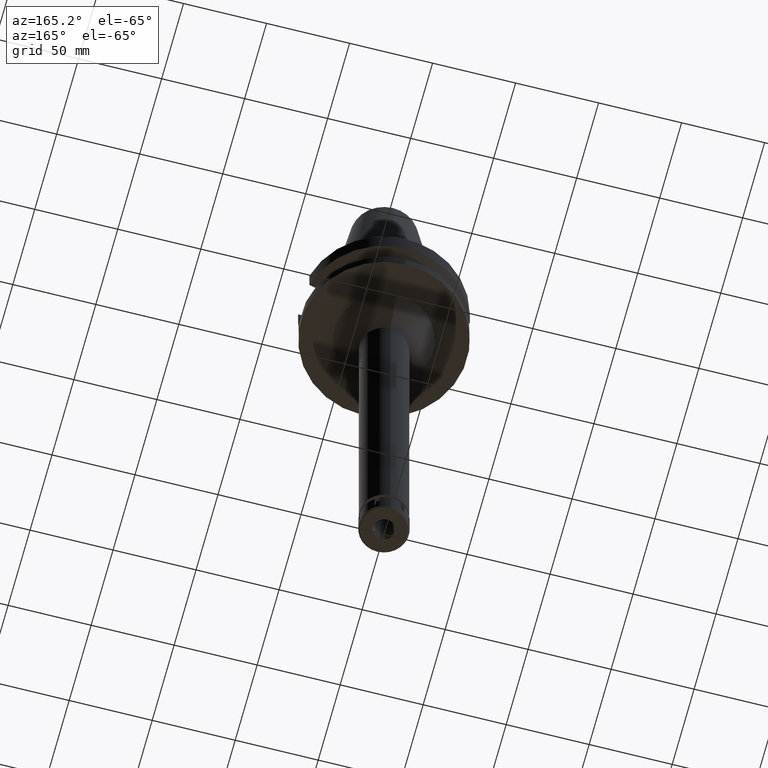
[diagram: clean part render]
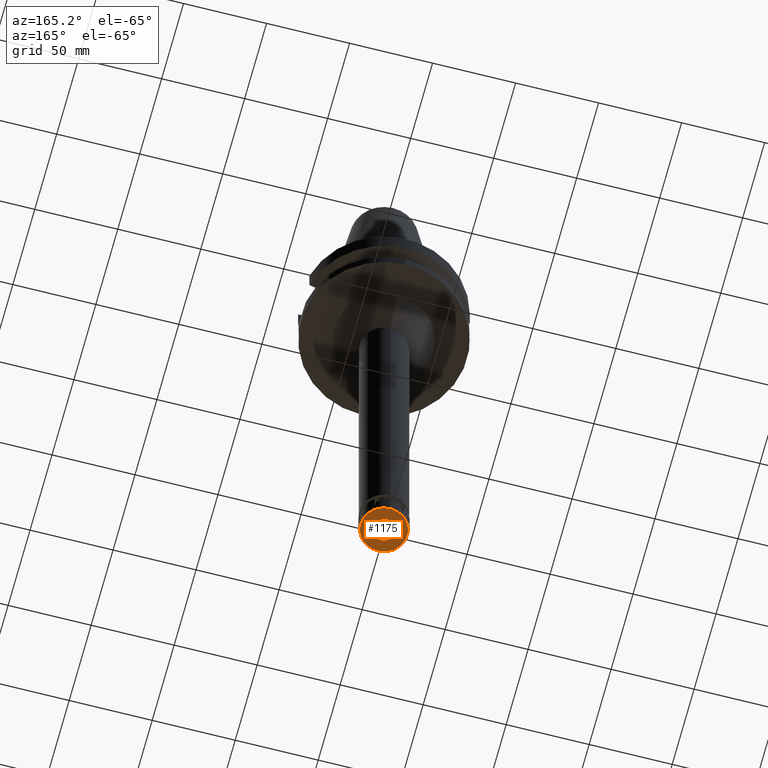
[diagram: same view with one face highlighted and labeled with its STEP entity id]
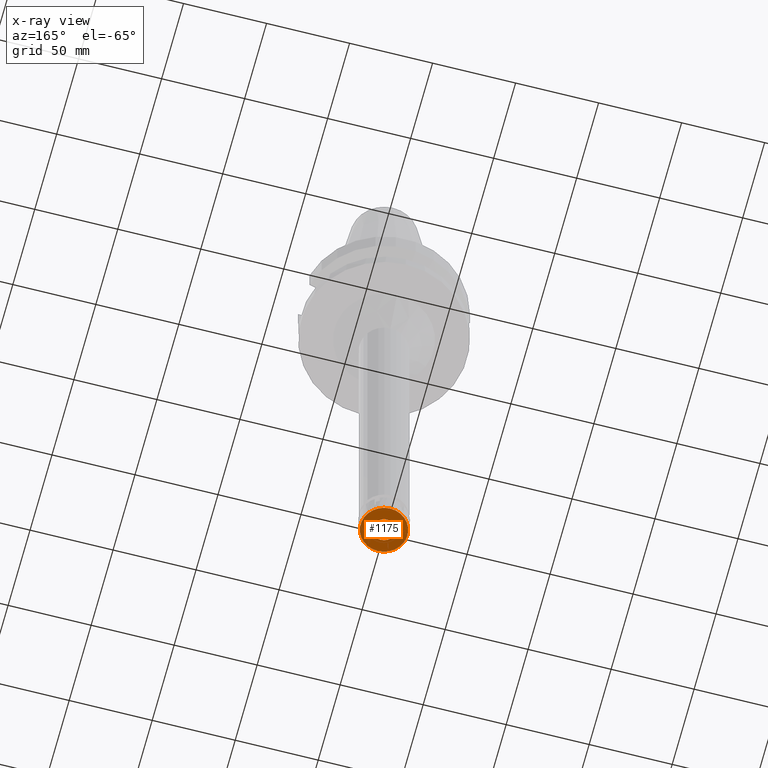
[diagram: x-ray of the same camera — body ghosted, the highlighted face saturated]
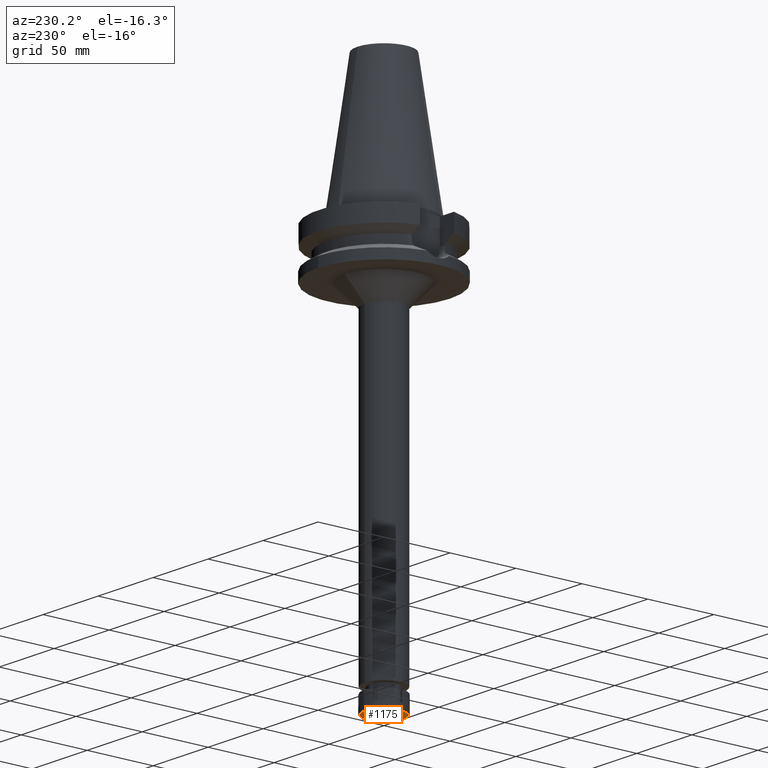
[diagram: same view with one face highlighted and labeled with its STEP entity id]
A machine part, auxiliary view. The second image highlights one B-rep face of the part: STEP entity #1175.
The next image is the same camera in x-ray: the body ghosted, the highlighted face saturated — about 0% of this face is hidden behind the body in this view.
A second angle (auxiliary view) of the same face is appended — the face is thin or edge-on in the first view.
In plain terms, the highlighted planar face has unit normal (0, 0, -1).
Its self-contained STEP definition (entity closure, byte-faithful):
#187 = ORIENTED_EDGE ( 'NONE', *, *, #1219, .F. ) ;
#273 = CARTESIAN_POINT ( 'NONE',  ( 0.0000000000000000000, 0.0000000000000000000, -12.50000000000000000 ) ) ;
#309 = CARTESIAN_POINT ( 'NONE',  ( 0.0000000000000000000, 0.0000000000000000000, -12.50000000000000000 ) ) ;
#388 = DIRECTION ( 'NONE',  ( 0.0000000000000000000, -1.000000000000000000, 0.0000000000000000000 ) ) ;
#452 = CARTESIAN_POINT ( 'NONE',  ( 0.0000000000000000000, 14.09999999999999964, -12.50000000000000000 ) ) ;
#524 = DIRECTION ( 'NONE',  ( 0.0000000000000000000, 0.0000000000000000000, -1.000000000000000000 ) ) ;
#528 = CIRCLE ( 'NONE', #1056, 6.750000000000000000 ) ;
#546 = FACE_OUTER_BOUND ( 'NONE', #2977, .T. ) ;
#603 = VERTEX_POINT ( 'NONE', #2349 ) ;
#794 = DIRECTION ( 'NONE',  ( 0.0000000000000000000, 0.0000000000000000000, -1.000000000000000000 ) ) ;
#813 = DIRECTION ( 'NONE',  ( 0.0000000000000000000, 0.0000000000000000000, -1.000000000000000000 ) ) ;
#984 = DIRECTION ( 'NONE',  ( 0.0000000000000000000, 1.000000000000000000, 0.0000000000000000000 ) ) ;
#1037 = CARTESIAN_POINT ( 'NONE',  ( 0.0000000000000000000, 6.750000000000000000, -12.50000000000000000 ) ) ;
#1056 = AXIS2_PLACEMENT_3D ( 'NONE', #273, #524, #1065 ) ;
#1065 = DIRECTION ( 'NONE',  ( 0.0000000000000000000, -1.000000000000000000, 0.0000000000000000000 ) ) ;
#1133 = EDGE_CURVE ( 'NONE', #2433, #603, #1902, .T. ) ;
#1175 = ADVANCED_FACE ( 'NONE', ( #546, #3082 ), #2449, .T. ) ;
#1219 = EDGE_CURVE ( 'NONE', #603, #2433, #528, .T. ) ;
#1624 = CARTESIAN_POINT ( 'NONE',  ( 0.0000000000000000000, 0.0000000000000000000, -12.50000000000000000 ) ) ;
#1682 = AXIS2_PLACEMENT_3D ( 'NONE', #3476, #3420, #984 ) ;
#1777 = DIRECTION ( 'NONE',  ( 0.0000000000000000000, 0.0000000000000000000, 1.000000000000000000 ) ) ;
#1902 = CIRCLE ( 'NONE', #2833, 6.750000000000000000 ) ;
#2098 = AXIS2_PLACEMENT_3D ( 'NONE', #309, #813, #3335 ) ;
#2102 = AXIS2_PLACEMENT_3D ( 'NONE', #2902, #1777, #388 ) ;
#2231 = VERTEX_POINT ( 'NONE', #452 ) ;
#2349 = CARTESIAN_POINT ( 'NONE',  ( 0.0000000000000000000, -6.750000000000000000, -12.50000000000000000 ) ) ;
#2433 = VERTEX_POINT ( 'NONE', #1037 ) ;
#2449 = PLANE ( 'NONE',  #2098 ) ;
#2502 = ORIENTED_EDGE ( 'NONE', *, *, #2997, .F. ) ;
#2508 = CARTESIAN_POINT ( 'NONE',  ( 0.0000000000000000000, -14.09999999999999964, -12.50000000000000000 ) ) ;
#2732 = CIRCLE ( 'NONE', #2102, 14.09999999999999964 ) ;
#2833 = AXIS2_PLACEMENT_3D ( 'NONE', #1624, #794, #3006 ) ;
#2849 = VERTEX_POINT ( 'NONE', #2508 ) ;
#2901 = ORIENTED_EDGE ( 'NONE', *, *, #1133, .F. ) ;
#2902 = CARTESIAN_POINT ( 'NONE',  ( 0.0000000000000000000, 0.0000000000000000000, -12.50000000000000000 ) ) ;
#2977 = EDGE_LOOP ( 'NONE', ( #2502, #3490 ) ) ;
#2997 = EDGE_CURVE ( 'NONE', #2231, #2849, #3554, .T. ) ;
#3006 = DIRECTION ( 'NONE',  ( 0.0000000000000000000, 1.000000000000000000, 0.0000000000000000000 ) ) ;
#3015 = EDGE_CURVE ( 'NONE', #2849, #2231, #2732, .T. ) ;
#3031 = EDGE_LOOP ( 'NONE', ( #2901, #187 ) ) ;
#3082 = FACE_BOUND ( 'NONE', #3031, .T. ) ;
#3335 = DIRECTION ( 'NONE',  ( 0.0000000000000000000, -1.000000000000000000, 0.0000000000000000000 ) ) ;
#3420 = DIRECTION ( 'NONE',  ( 0.0000000000000000000, 0.0000000000000000000, 1.000000000000000000 ) ) ;
#3476 = CARTESIAN_POINT ( 'NONE',  ( 0.0000000000000000000, 0.0000000000000000000, -12.50000000000000000 ) ) ;
#3490 = ORIENTED_EDGE ( 'NONE', *, *, #3015, .F. ) ;
#3554 = CIRCLE ( 'NONE', #1682, 14.09999999999999964 ) ;